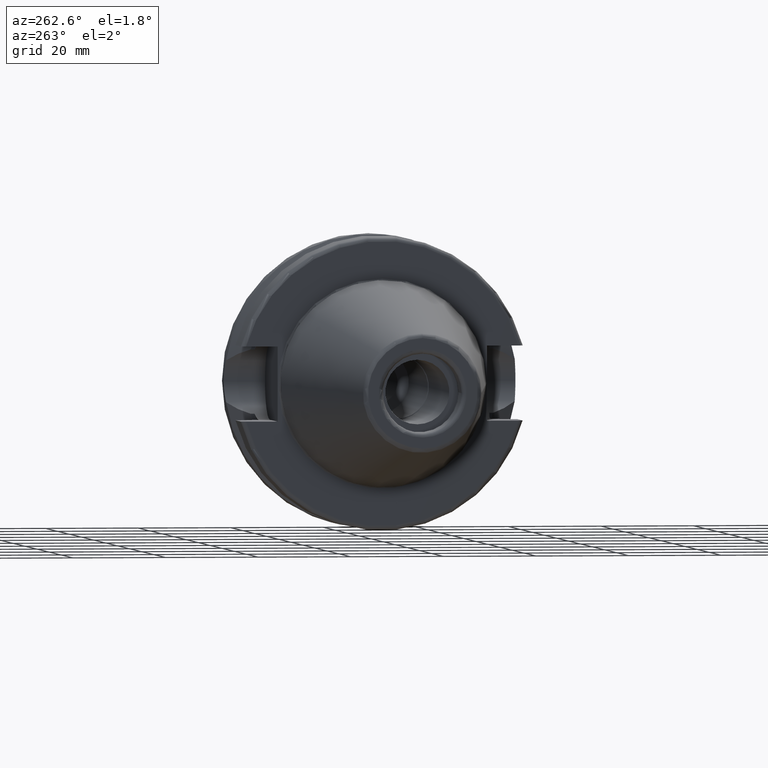
[diagram: clean part render]
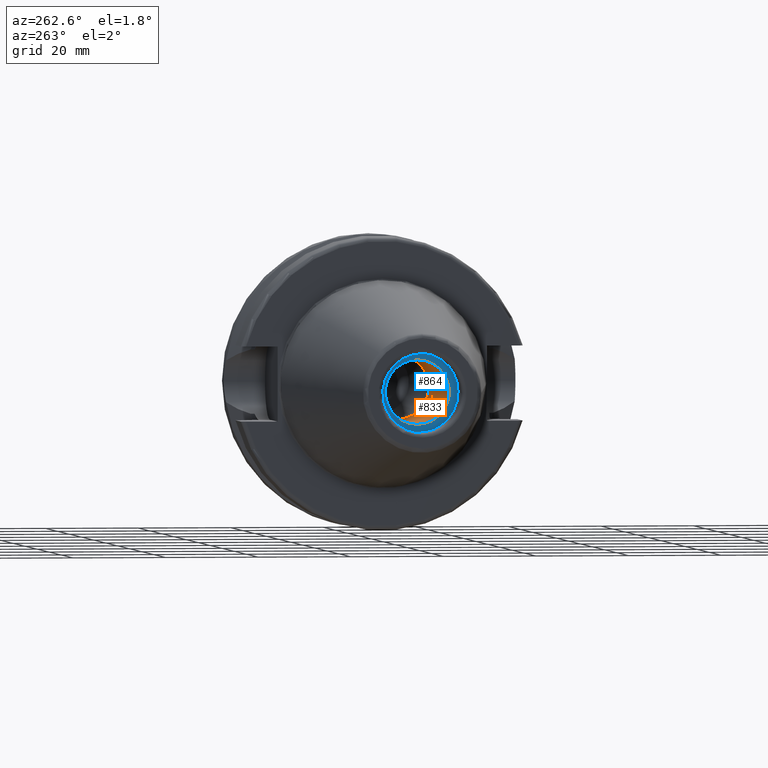
[diagram: same view with the hole feature highlighted: cylindrical wall and planar end face, labeled with their STEP entity ids]
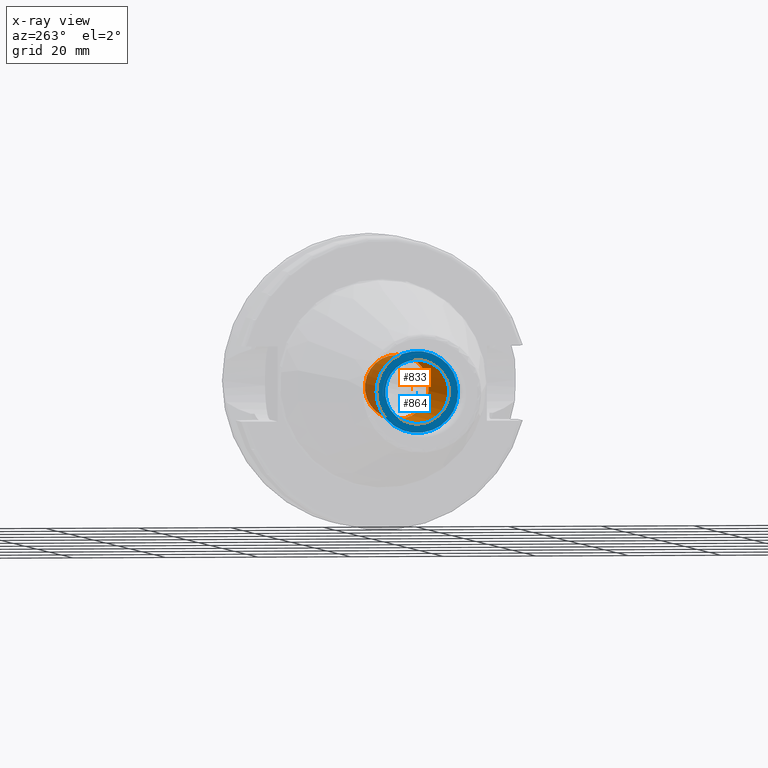
[diagram: x-ray of the same camera — body ghosted, the hole faces saturated]
A machine part, auxiliary view. The highlighted faces form one hole feature of diameter 13.835 mm: the cylindrical wall (entity #833, orange) and its adjacent planar end face (entity #864, blue) — they share a circular edge in the B-rep.
The next image is the same camera in x-ray (body ghosted, the hole faces saturated) — the bore reads through the body.
Wall:
#76=CIRCLE('',#922,6.9175);
#77=CIRCLE('',#924,6.9175);
#121=CYLINDRICAL_SURFACE('',#923,6.9175);
#146=FACE_OUTER_BOUND('',#201,.T.);
#201=EDGE_LOOP('',(#624,#625,#626,#627));
#270=LINE('',#1536,#318);
#318=VECTOR('',#1075,6.9175);
#374=VERTEX_POINT('',#1530);
#375=VERTEX_POINT('',#1534);
#466=EDGE_CURVE('',#374,#374,#76,.T.);
#468=EDGE_CURVE('',#375,#375,#77,.T.);
#469=EDGE_CURVE('',#375,#374,#270,.T.);
#624=ORIENTED_EDGE('',*,*,#468,.F.);
#625=ORIENTED_EDGE('',*,*,#469,.T.);
#626=ORIENTED_EDGE('',*,*,#466,.F.);
#627=ORIENTED_EDGE('',*,*,#469,.F.);
#833=ADVANCED_FACE('',(#146),#121,.F.);
#922=AXIS2_PLACEMENT_3D('',#1531,#1068,#1069);
#923=AXIS2_PLACEMENT_3D('',#1533,#1071,#1072);
#924=AXIS2_PLACEMENT_3D('',#1535,#1073,#1074);
#1068=DIRECTION('center_axis',(-1.,0.,0.));
#1069=DIRECTION('ref_axis',(0.,0.,1.));
#1071=DIRECTION('center_axis',(-1.,0.,0.));
#1072=DIRECTION('ref_axis',(0.,0.,1.));
#1073=DIRECTION('center_axis',(1.,0.,0.));
#1074=DIRECTION('ref_axis',(0.,0.,1.));
#1075=DIRECTION('',(1.,0.,0.));
#1530=CARTESIAN_POINT('',(-22.4,-8.47149423310182E-16,-6.9175));
#1531=CARTESIAN_POINT('Origin',(-22.4,0.,0.));
#1533=CARTESIAN_POINT('Origin',(-43.9,0.,0.));
#1534=CARTESIAN_POINT('',(-56.4,8.47149423310182E-16,-6.9175));
#1535=CARTESIAN_POINT('Origin',(-56.4,0.,0.));
#1536=CARTESIAN_POINT('',(-43.9,-8.47149423310182E-16,-6.9175));
End face:
#32=PLANE('',#986);
#58=FACE_BOUND('',#234,.T.);
#77=CIRCLE('',#924,6.9175);
#109=CIRCLE('',#987,8.8);
#177=FACE_OUTER_BOUND('',#233,.T.);
#233=EDGE_LOOP('',(#796));
#234=EDGE_LOOP('',(#797));
#375=VERTEX_POINT('',#1534);
#431=VERTEX_POINT('',#1810);
#468=EDGE_CURVE('',#375,#375,#77,.T.);
#554=EDGE_CURVE('',#431,#431,#109,.T.);
#796=ORIENTED_EDGE('',*,*,#554,.F.);
#797=ORIENTED_EDGE('',*,*,#468,.T.);
#864=ADVANCED_FACE('',(#177,#58),#32,.T.);
#924=AXIS2_PLACEMENT_3D('',#1535,#1073,#1074);
#986=AXIS2_PLACEMENT_3D('',#1809,#1232,#1233);
#987=AXIS2_PLACEMENT_3D('',#1811,#1234,#1235);
#1073=DIRECTION('center_axis',(1.,0.,0.));
#1074=DIRECTION('ref_axis',(0.,0.,1.));
#1232=DIRECTION('center_axis',(-1.,0.,0.));
#1233=DIRECTION('ref_axis',(0.,0.,1.));
#1234=DIRECTION('center_axis',(1.,0.,0.));
#1235=DIRECTION('ref_axis',(0.,0.,-1.));
#1534=CARTESIAN_POINT('',(-56.4,8.47149423310182E-16,-6.9175));
#1535=CARTESIAN_POINT('Origin',(-56.4,0.,0.));
#1809=CARTESIAN_POINT('Origin',(-56.4,8.8,0.));
#1810=CARTESIAN_POINT('',(-56.4,-8.8,-1.07768918324967E-15));
#1811=CARTESIAN_POINT('Origin',(-56.4,0.,0.));